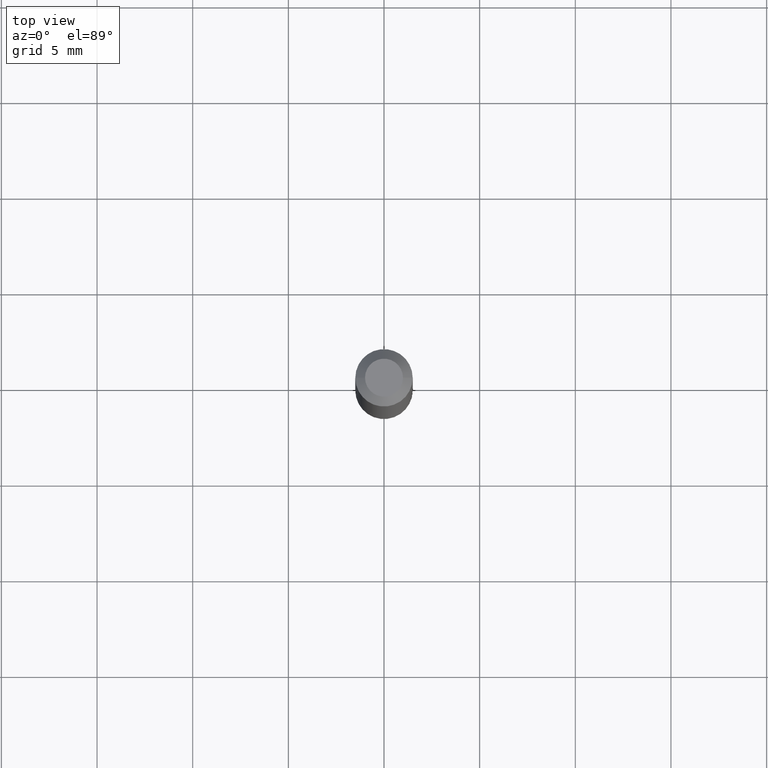
[diagram: clean part render]
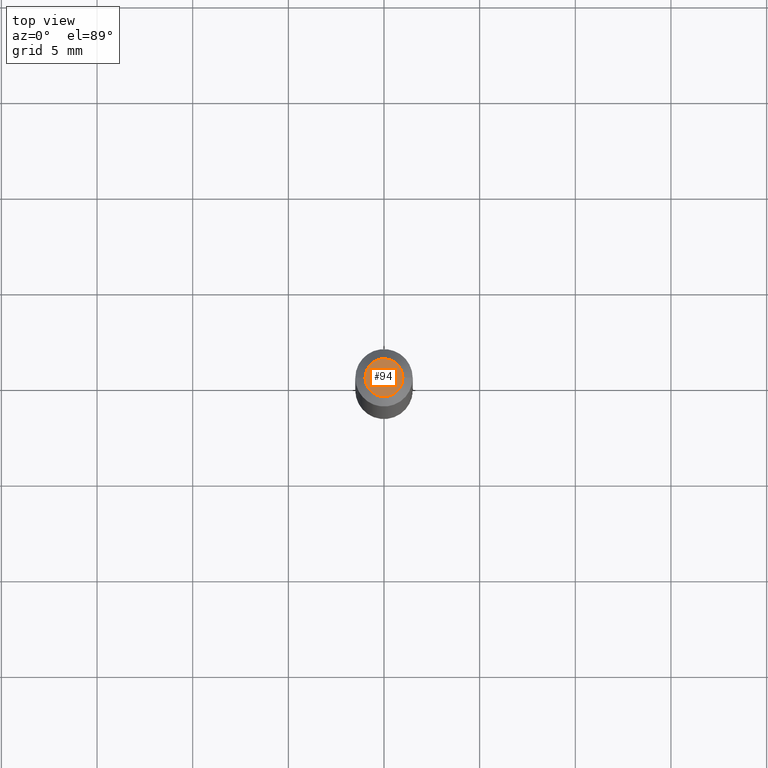
[diagram: same view with one face highlighted and labeled with its STEP entity id]
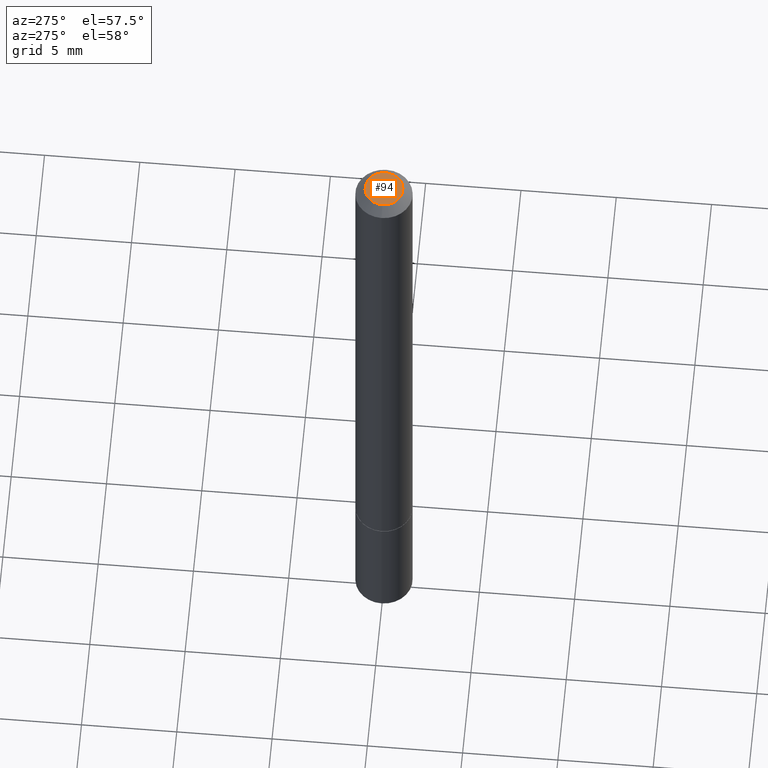
[diagram: same view with one face highlighted and labeled with its STEP entity id]
A machine part, top view. The second image highlights one B-rep face of the part: STEP entity #94.
A second angle (auxiliary view) of the same face is appended — the face is thin or edge-on in the first view.
In plain terms, the highlighted planar face has unit normal (0, -0, -1).
Its self-contained STEP definition (entity closure, byte-faithful):
#5 = DIRECTION ( 'NONE',  ( -2.445468806185136597E-29, 3.491481338843145583E-15, 1.000000000000000000 ) ) ;
#25 = CARTESIAN_POINT ( 'NONE',  ( 2.726846925636483731E-16, 0.03904999999999995974, -1.576849087323267144E-16 ) ) ;
#50 = ORIENTED_EDGE ( 'NONE', *, *, #224, .T. ) ;
#56 = CARTESIAN_POINT ( 'NONE',  ( -0.03904999999999995974, 3.075995059520794305E-16, -4.268512490100614657E-17 ) ) ;
#79 = AXIS2_PLACEMENT_3D ( 'NONE', #25, #165, #300 ) ;
#94 = ADVANCED_FACE ( 'NONE', ( #194 ), #190, .F. ) ;
#101 = EDGE_CURVE ( 'NONE', #293, #211, #122, .T. ) ;
#122 = CIRCLE ( 'NONE', #307, 0.03904999999999995974 ) ;
#139 = CARTESIAN_POINT ( 'NONE',  ( 1.043851414335219781E-45, -1.490343170380447145E-31, -4.268512490100411279E-17 ) ) ;
#161 = AXIS2_PLACEMENT_3D ( 'NONE', #284, #5, #201 ) ;
#165 = DIRECTION ( 'NONE',  ( 2.438088387897960049E-29, -3.491481338843145188E-15, -1.000000000000000000 ) ) ;
#190 = PLANE ( 'NONE',  #79 ) ;
#194 = FACE_OUTER_BOUND ( 'NONE', #288, .T. ) ;
#195 = DIRECTION ( 'NONE',  ( 1.000000000000000000, -6.982962677686266711E-15, 4.873707401586867728E-29 ) ) ;
#201 = DIRECTION ( 'NONE',  ( 1.000000000000000000, -6.982962677686266711E-15, 4.873707401586867728E-29 ) ) ;
#211 = VERTEX_POINT ( 'NONE', #56 ) ;
#224 = EDGE_CURVE ( 'NONE', #211, #293, #350, .T. ) ;
#226 = CARTESIAN_POINT ( 'NONE',  ( 0.03904999999999995974, -3.714222401791248901E-16, -4.268512490100186330E-17 ) ) ;
#284 = CARTESIAN_POINT ( 'NONE',  ( 1.043851414335219781E-45, -1.490343170380447145E-31, -4.268512490100411279E-17 ) ) ;
#288 = EDGE_LOOP ( 'NONE', ( #50, #291 ) ) ;
#291 = ORIENTED_EDGE ( 'NONE', *, *, #101, .T. ) ;
#293 = VERTEX_POINT ( 'NONE', #226 ) ;
#300 = DIRECTION ( 'NONE',  ( -1.000000000000000000, 6.982962677686265922E-15, -4.876176775795935793E-29 ) ) ;
#307 = AXIS2_PLACEMENT_3D ( 'NONE', #139, #334, #195 ) ;
#334 = DIRECTION ( 'NONE',  ( -2.445468806185136597E-29, 3.491481338843145583E-15, 1.000000000000000000 ) ) ;
#350 = CIRCLE ( 'NONE', #161, 0.03904999999999995974 ) ;